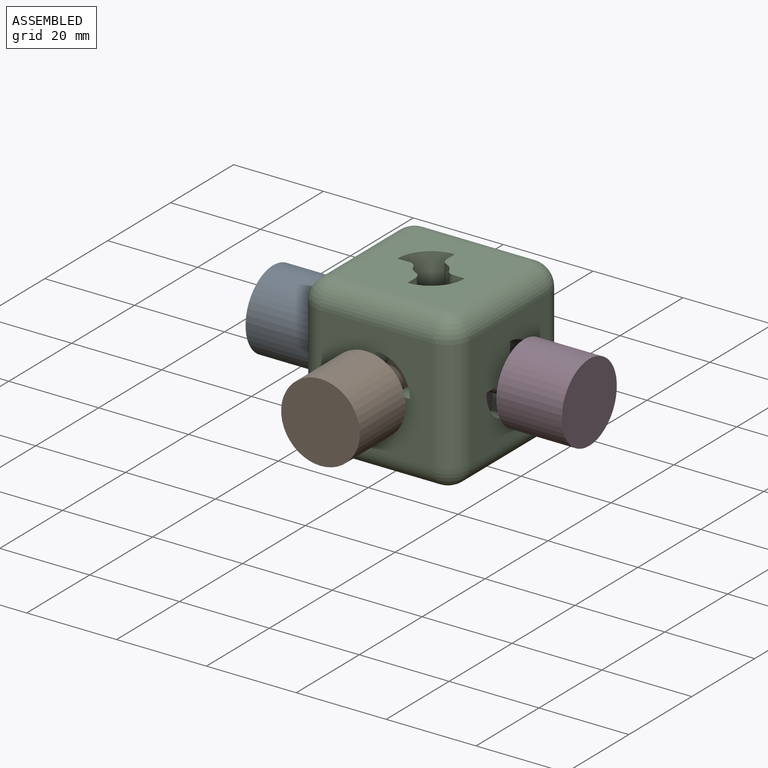
[diagram: assembled view]
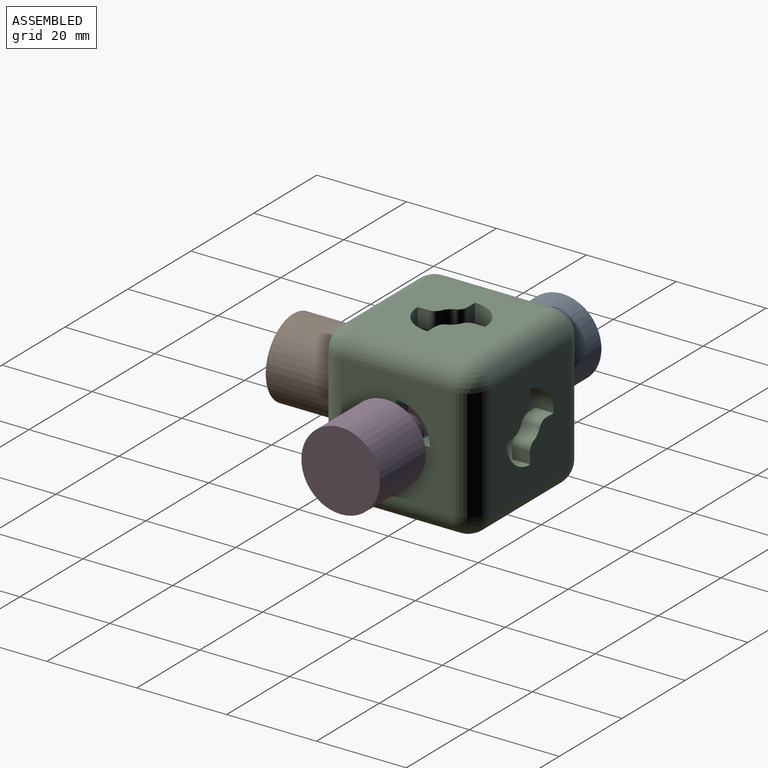
[diagram: assembled view, second angle]
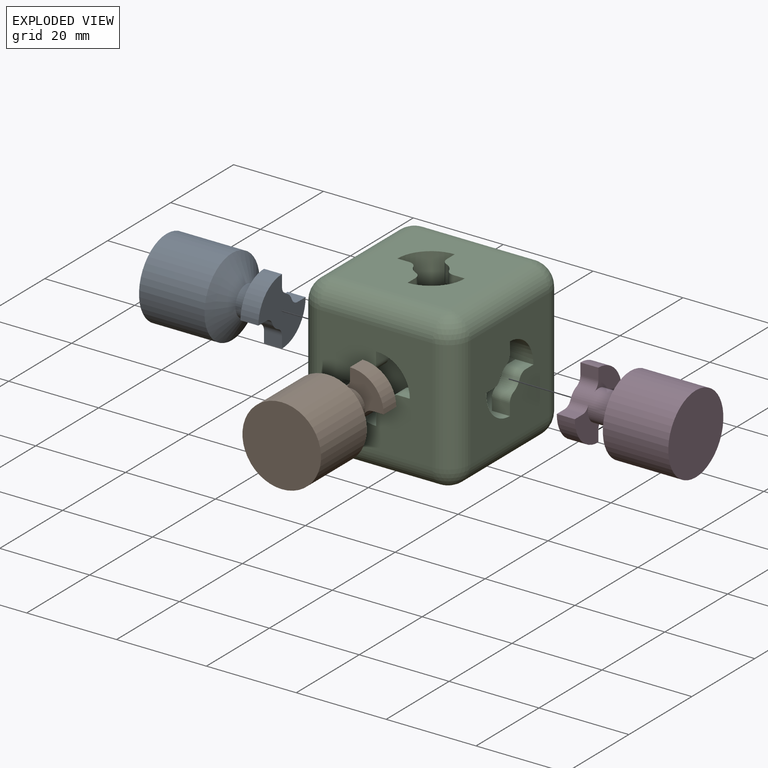
[diagram: exploded view]
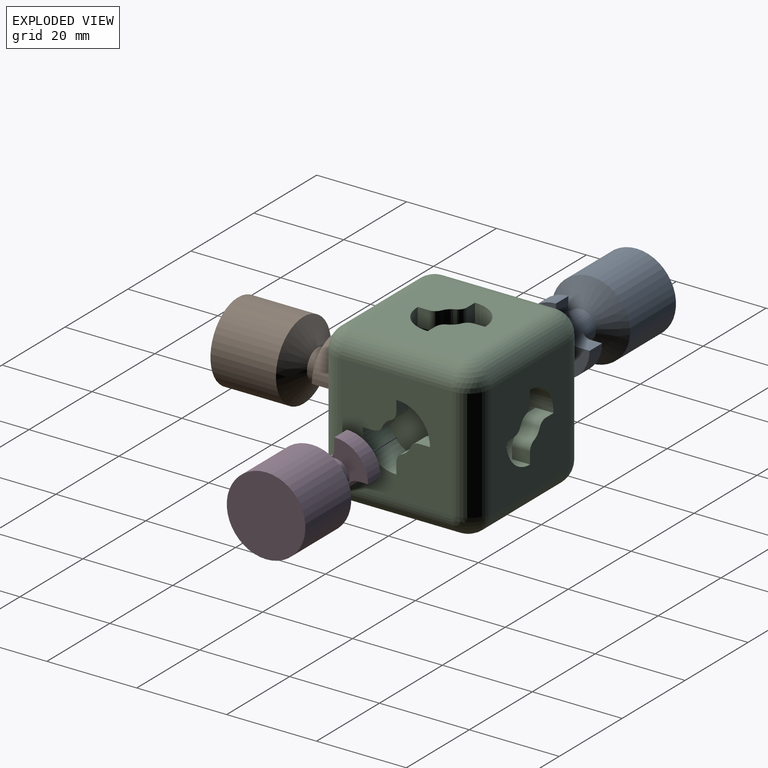
[diagram: exploded view, second angle]
ASSEMBLY  parts=4 mates=2
PART A: 17 faces, bbox 25.7x17.5x17.5 mm
  f0: plane 15x15mm, normal (1,0,0), area 107.7mm2, adj f1,f6,f7,f8,f10,f11,f12,f13
  f1: cylinder r=3.35mm len=8mm, axis (-1,0,0), area 105.7mm2, adj f0,f2,f5,f9,f13,f14,f15,f16
  f2: cone r=3.35mm half-angle=60deg, axis (-1,0,0), area 237.1mm2, adj f1,f3
  f3: cylinder r=8.75mm len=17.5mm, axis (-1,0,0), area 801mm2, adj f2,f4
  f4: plane 17.5x17.5mm, normal (-1,0,0), area 240.5mm2, adj f3
  f5: plane 8.75x8.75mm, normal (-1,0,0), area 36.2mm2, adj f1,f6,f7,f8,f15,f16
  f6: cylinder r=7.5mm len=7.5mm, axis (-1,0,0), area 47.1mm2, adj f0,f5,f7,f8
  f7: plane 4x2.54mm, normal (0,0,-1), area 10.2mm2, adj f0,f5,f6,f16
  f8: plane 4x2.54mm, normal (0,1,0), area 10.2mm2, adj f0,f5,f6,f15
  f9: plane 8.75x8.75mm, normal (-1,0,0), area 36.2mm2, adj f1,f10,f11,f12,f13,f14
  f10: cylinder r=7.5mm len=7.5mm, axis (-1,0,0), area 47.1mm2, adj f0,f9,f11,f12
  f11: plane 4x2.54mm, normal (0,0,1), area 10.2mm2, adj f0,f9,f10,f14
  f12: plane 4x2.54mm, normal (0,-1,0), area 10.2mm2, adj f0,f9,f10,f13
  f13: cylinder r=2mm len=4mm, axis (-1,0,0), area 9.5mm2, adj f0,f1,f9,f12
  f14: cylinder r=2mm len=4mm, axis (-1,0,0), area 9.5mm2, adj f0,f1,f9,f11
  f15: cylinder r=2mm len=4mm, axis (-1,0,0), area 9.5mm2, adj f0,f1,f5,f8
  f16: cylinder r=2mm len=4mm, axis (-1,0,0), area 9.5mm2, adj f0,f1,f5,f7
PART B: same geometry as A
PART C: 110 faces, bbox 35x35x35 mm
  f0: plane 25x25mm, normal (1,0,0), area 517.3mm2, adj f72,f73,f74,f75,f76,f77,f78,f79
  f1: plane 25x25mm, normal (0,-1,0), area 517.3mm2, adj f44,f45,f46,f47,f48,f49,f50,f51
  f2: plane 25x25mm, normal (0,0,1), area 517.3mm2, adj f30,f31,f32,f33,f34,f35,f36,f37
  f3: plane 25x25mm, normal (0,1,0), area 517.3mm2, adj f58,f59,f60,f61,f62,f63,f64,f65
  f4: plane 25x25mm, normal (-1,0,0), area 517.3mm2, adj f6,f7,f8,f9,f10,f11,f12,f13
  f5: plane 25x25mm, normal (0,0,-1), area 517.3mm2, adj f16,f17,f18,f19,f20,f21,f22,f23
  f6: cylinder r=3.35mm len=4mm, axis (1,0,0), area 10.8mm2, adj f4,f7,f15,f86
  f7: cylinder r=2mm len=4mm, axis (1,0,0), area 9.5mm2, adj f4,f6,f8,f86
  f8: plane 4x2.54mm, normal (0,-1,0), area 10.2mm2, adj f4,f7,f86,f89
  f9: plane 4x2.54mm, normal (0,0,1), area 10.2mm2, adj f4,f10,f87,f89
  f10: cylinder r=2mm len=4mm, axis (1,0,0), area 9.5mm2, adj f4,f9,f11,f87
  f11: cylinder r=3.35mm len=4mm, axis (1,0,0), area 10.8mm2, adj f4,f10,f12,f87
  f12: cylinder r=2mm len=4mm, axis (1,0,0), area 9.5mm2, adj f4,f11,f13,f87
  f13: plane 4x2.54mm, normal (0,1,0), area 10.2mm2, adj f4,f12,f87,f89
  f14: plane 4x2.54mm, normal (0,0,-1), area 10.2mm2, adj f4,f15,f86,f89
  f15: cylinder r=2mm len=4mm, axis (1,0,0), area 9.5mm2, adj f4,f6,f14,f86
  f16: cylinder r=3.35mm len=4mm, axis (0,0,1), area 10.8mm2, adj f5,f17,f26,f28
  f17: cylinder r=2mm len=4mm, axis (0,0,1), area 9.5mm2, adj f5,f16,f18,f28
  f18: plane 4x2.54mm, normal (0,-1,0), area 10.2mm2, adj f5,f17,f24,f28
  f19: plane 4x2.54mm, normal (-1,0,0), area 10.2mm2, adj f5,f20,f24,f29
  f20: cylinder r=2mm len=4mm, axis (0,0,1), area 9.5mm2, adj f5,f19,f21,f29
  f21: cylinder r=3.35mm len=4mm, axis (0,0,1), area 10.8mm2, adj f5,f20,f22,f29
  f22: cylinder r=2mm len=4mm, axis (0,0,1), area 9.5mm2, adj f5,f21,f23,f29
  f23: plane 4x2.54mm, normal (0,1,0), area 10.2mm2, adj f5,f22,f24,f29
  f24: cylinder r=7.5mm len=15mm, axis (0,0,1), area 282.7mm2, adj f5,f18,f19,f23,f25,f27,f28,f29
  f25: plane 4x2.54mm, normal (1,0,0), area 10.2mm2, adj f5,f24,f26,f28
  f26: cylinder r=2mm len=4mm, axis (0,0,1), area 9.5mm2, adj f5,f16,f25,f28
  f27: plane 15x15mm, normal (0,0,-1), area 176.7mm2, adj f24
  f28: plane 7.5x7.5mm, normal (0,0,1), area 34.5mm2, adj f16,f17,f18,f24,f25,f26
  f29: plane 7.5x7.5mm, normal (0,0,1), area 34.5mm2, adj f19,f20,f21,f22,f23,f24
  f30: cylinder r=3.35mm len=4mm, axis (0,0,-1), area 10.8mm2, adj f2,f31,f40,f42
  f31: cylinder r=2mm len=4mm, axis (0,0,-1), area 9.5mm2, adj f2,f30,f32,f42
  f32: plane 4x2.54mm, normal (0,-1,0), area 10.2mm2, adj f2,f31,f38,f42
  f33: plane 4x2.54mm, normal (1,0,0), area 10.2mm2, adj f2,f34,f38,f43
  f34: cylinder r=2mm len=4mm, axis (0,0,-1), area 9.5mm2, adj f2,f33,f35,f43
  f35: cylinder r=3.35mm len=4mm, axis (0,0,-1), area 10.8mm2, adj f2,f34,f36,f43
  f36: cylinder r=2mm len=4mm, axis (0,0,-1), area 9.5mm2, adj f2,f35,f37,f43
  f37: plane 4x2.54mm, normal (0,1,0), area 10.2mm2, adj f2,f36,f38,f43
  f38: cylinder r=7.5mm len=15mm, axis (0,0,-1), area 282.7mm2, adj f2,f32,f33,f37,f39,f41,f42,f43
  f39: plane 4x2.54mm, normal (-1,0,0), area 10.2mm2, adj f2,f38,f40,f42
  f40: cylinder r=2mm len=4mm, axis (0,0,-1), area 9.5mm2, adj f2,f30,f39,f42
  f41: plane 15x15mm, normal (0,0,1), area 176.7mm2, adj f38
  f42: plane 7.5x7.5mm, normal (0,0,-1), area 34.5mm2, adj f30,f31,f32,f38,f39,f40
  f43: plane 7.5x7.5mm, normal (0,0,-1), area 34.5mm2, adj f33,f34,f35,f36,f37,f38
  f44: cylinder r=3.35mm len=4mm, axis (0,1,0), area 10.8mm2, adj f1,f45,f54,f56
  f45: cylinder r=2mm len=4mm, axis (0,1,0), area 9.5mm2, adj f1,f44,f46,f56
  f46: plane 4x2.54mm, normal (1,0,0), area 10.2mm2, adj f1,f45,f52,f56
  f47: plane 4x2.54mm, normal (0,0,1), area 10.2mm2, adj f1,f48,f52,f57
  f48: cylinder r=2mm len=4mm, axis (0,1,0), area 9.5mm2, adj f1,f47,f49,f57
  f49: cylinder r=3.35mm len=4mm, axis (0,1,0), area 10.8mm2, adj f1,f48,f50,f57
  f50: cylinder r=2mm len=4mm, axis (0,1,0), area 9.5mm2, adj f1,f49,f51,f57
  f51: plane 4x2.54mm, normal (-1,0,0), area 10.2mm2, adj f1,f50,f52,f57
  f52: cylinder r=7.5mm len=15mm, axis (0,1,0), area 282.7mm2, adj f1,f46,f47,f51,f53,f55,f56,f57
  f53: plane 4x2.54mm, normal (0,0,-1), area 10.2mm2, adj f1,f52,f54,f56
  f54: cylinder r=2mm len=4mm, axis (0,1,0), area 9.5mm2, adj f1,f44,f53,f56
  f55: plane 15x15mm, normal (0,-1,0), area 176.7mm2, adj f52
  f56: plane 7.5x7.5mm, normal (0,1,0), area 34.5mm2, adj f44,f45,f46,f52,f53,f54
  f57: plane 7.5x7.5mm, normal (0,1,0), area 34.5mm2, adj f47,f48,f49,f50,f51,f52
  f58: cylinder r=3.35mm len=4mm, axis (0,-1,0), area 10.8mm2, adj f3,f59,f68,f70
  f59: cylinder r=2mm len=4mm, axis (0,-1,0), area 9.5mm2, adj f3,f58,f60,f70
  f60: plane 4x2.54mm, normal (-1,0,0), area 10.2mm2, adj f3,f59,f66,f70
  f61: plane 4x2.54mm, normal (0,0,1), area 10.2mm2, adj f3,f62,f66,f71
  f62: cylinder r=2mm len=4mm, axis (0,-1,0), area 9.5mm2, adj f3,f61,f63,f71
  f63: cylinder r=3.35mm len=4mm, axis (0,-1,0), area 10.8mm2, adj f3,f62,f64,f71
  f64: cylinder r=2mm len=4mm, axis (0,-1,0), area 9.5mm2, adj f3,f63,f65,f71
  f65: plane 4x2.54mm, normal (1,0,0), area 10.2mm2, adj f3,f64,f66,f71
  f66: cylinder r=7.5mm len=15mm, axis (0,-1,0), area 282.7mm2, adj f3,f60,f61,f65,f67,f69,f70,f71
  f67: plane 4x2.54mm, normal (0,0,-1), area 10.2mm2, adj f3,f66,f68,f70
  f68: cylinder r=2mm len=4mm, axis (0,-1,0), area 9.5mm2, adj f3,f58,f67,f70
  f69: plane 15x15mm, normal (0,1,0), area 176.7mm2, adj f66
  f70: plane 7.5x7.5mm, normal (0,-1,0), area 34.5mm2, adj f58,f59,f60,f66,f67,f68
  f71: plane 7.5x7.5mm, normal (0,-1,0), area 34.5mm2, adj f61,f62,f63,f64,f65,f66
  f72: cylinder r=3.35mm len=4mm, axis (-1,0,0), area 10.8mm2, adj f0,f73,f82,f84
  f73: cylinder r=2mm len=4mm, axis (-1,0,0), area 9.5mm2, adj f0,f72,f74,f84
  f74: plane 4x2.54mm, normal (0,-1,0), area 10.2mm2, adj f0,f73,f80,f84
  f75: plane 4x2.54mm, normal (0,0,-1), area 10.2mm2, adj f0,f76,f80,f85
  f76: cylinder r=2mm len=4mm, axis (-1,0,0), area 9.5mm2, adj f0,f75,f77,f85
  f77: cylinder r=3.35mm len=4mm, axis (-1,0,0), area 10.8mm2, adj f0,f76,f78,f85
  f78: cylinder r=2mm len=4mm, axis (-1,0,0), area 9.5mm2, adj f0,f77,f79,f85
  f79: plane 4x2.54mm, normal (0,1,0), area 10.2mm2, adj f0,f78,f80,f85
  f80: cylinder r=7.5mm len=15mm, axis (-1,0,0), area 282.7mm2, adj f0,f74,f75,f79,f81,f83,f84,f85
  f81: plane 4x2.54mm, normal (0,0,1), area 10.2mm2, adj f0,f80,f82,f84
  f82: cylinder r=2mm len=4mm, axis (-1,0,0), area 9.5mm2, adj f0,f72,f81,f84
  f83: plane 15x15mm, normal (1,0,0), area 176.7mm2, adj f80
  f84: plane 7.5x7.5mm, normal (-1,0,0), area 34.5mm2, adj f72,f73,f74,f80,f81,f82
  f85: plane 7.5x7.5mm, normal (-1,0,0), area 34.5mm2, adj f75,f76,f77,f78,f79,f80
  f86: plane 7.5x7.5mm, normal (1,0,0), area 34.5mm2, adj f6,f7,f8,f14,f15,f89
  f87: plane 7.5x7.5mm, normal (1,0,0), area 34.5mm2, adj f9,f10,f11,f12,f13,f89
  f88: plane 15x15mm, normal (-1,0,0), area 176.7mm2, adj f89
  f89: cylinder r=7.5mm len=15mm, axis (1,0,0), area 282.7mm2, adj f4,f8,f9,f13,f14,f86,f87,f88
  f90: cylinder r=5mm len=25mm, axis (0,0,1), area 196.3mm2, adj f1,f4,f91,f92
  f91: sphere r=5mm, area 39.3mm2, adj f90,f93,f94
  f92: sphere r=5mm, area 39.3mm2, adj f90,f96,f97
  f93: cylinder r=5mm len=25mm, axis (-1,0,0), area 196.3mm2, adj f1,f2,f91,f99
  f94: cylinder r=5mm len=25mm, axis (0,1,0), area 196.3mm2, adj f2,f4,f91,f100
  f95: cylinder r=5mm len=25mm, axis (0,0,-1), area 196.3mm2, adj f3,f4,f100,f101
  f96: cylinder r=5mm len=25mm, axis (0,-1,0), area 196.3mm2, adj f4,f5,f92,f101
  f97: cylinder r=5mm len=25mm, axis (1,0,0), area 196.3mm2, adj f1,f5,f92,f102
  f98: cylinder r=5mm len=25mm, axis (0,0,-1), area 196.3mm2, adj f0,f1,f99,f102
  f99: sphere r=5mm, area 39.3mm2, adj f93,f98,f103
  f100: sphere r=5mm, area 39.3mm2, adj f94,f95,f104
  f101: sphere r=5mm, area 39.3mm2, adj f95,f96,f105
  f102: sphere r=5mm, area 39.3mm2, adj f97,f98,f106
  f103: cylinder r=5mm len=25mm, axis (0,-1,0), area 196.3mm2, adj f0,f2,f99,f107
  f104: cylinder r=5mm len=25mm, axis (1,0,0), area 196.3mm2, adj f2,f3,f100,f107
  f105: cylinder r=5mm len=25mm, axis (-1,0,0), area 196.3mm2, adj f3,f5,f101,f108
  f106: cylinder r=5mm len=25mm, axis (0,1,0), area 196.3mm2, adj f0,f5,f102,f108
  f107: sphere r=5mm, area 39.3mm2, adj f103,f104,f109
  f108: sphere r=5mm, area 39.3mm2, adj f105,f106,f109
  f109: cylinder r=5mm len=25mm, axis (0,0,1), area 196.3mm2, adj f0,f3,f107,f108
PART D: same geometry as A
PLACE A at identity
PLACE B rot(axis=(0.71,0.71,0),180deg) t=(0,0,0)mm
PLACE C at identity
PLACE D rot(axis=(0,-1,0),180deg) t=(0,0,0)mm
MATE fastened B.f2 <-> C.f44  axis (0,1,0) through (0,-9.5,0)mm
MATE fastened D.f2 <-> C.f72  axis (-1,0,0) through (9.5,0,0)mm
